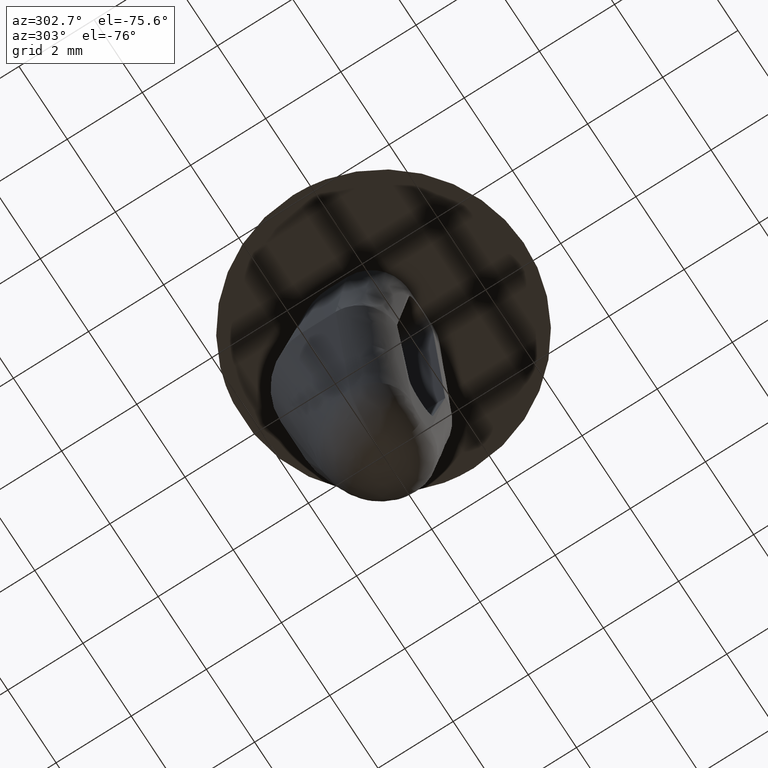
[diagram: clean part render]
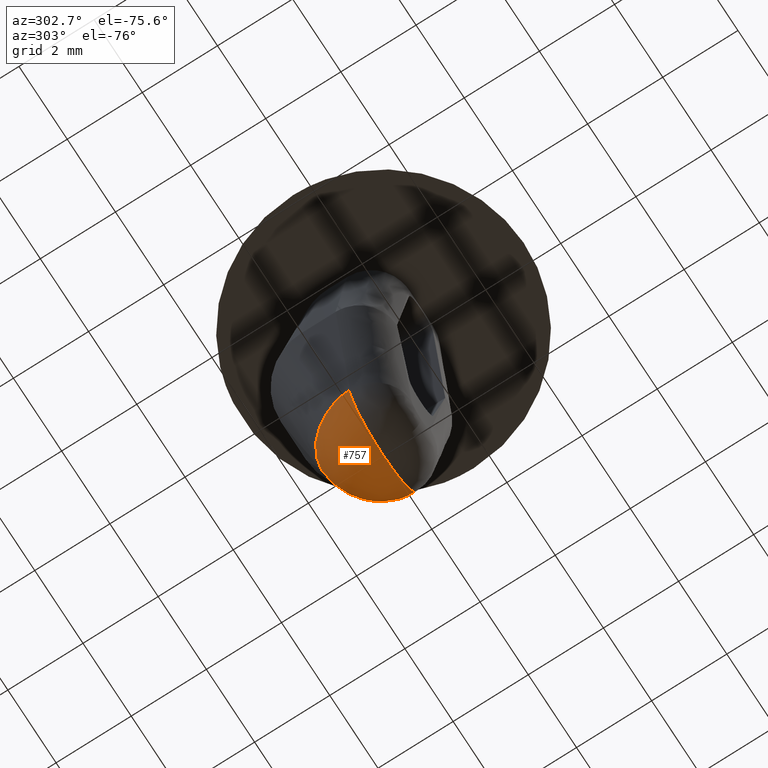
[diagram: same view with one face highlighted and labeled with its STEP entity id]
A machine part, auxiliary view. The second image highlights one B-rep face of the part: STEP entity #757.
In plain terms, the highlighted face is a freeform B-spline surface patch.
Its self-contained STEP definition (entity closure, byte-faithful):
#547=CARTESIAN_POINT('',(-0.000000418702529,1.645494502491510,-9.042271304584160));
#548=VERTEX_POINT('',#547);
#549=CARTESIAN_POINT('',(-1.389561000000000,0.024928463886464,-9.770653000000001));
#550=VERTEX_POINT('',#549);
#551=CARTESIAN_POINT('',(-0.000000418702529,1.645494502491510,-9.042271304584160));
#552=CARTESIAN_POINT('',(-1.360520929404774,1.473893311671256,-10.007112227865576));
#553=CARTESIAN_POINT('',(-1.389561000000000,0.024928463886464,-9.770653000000001));
#561=(BOUNDED_CURVE()B_SPLINE_CURVE(2,(#551,#552,#553),.UNSPECIFIED.,.F.,.U.)CURVE()GEOMETRIC_REPRESENTATION_ITEM()QUASI_UNIFORM_CURVE()RATIONAL_B_SPLINE_CURVE((1.0,0.714613377494958,1.0))REPRESENTATION_ITEM(''));
#562=EDGE_CURVE('',#548,#550,#561,.T.);
#578=CARTESIAN_POINT('',(-1.389561053966960,0.024927836228587,-9.770652560560514));
#579=CARTESIAN_POINT('',(-1.389501200886621,0.027914290247830,-9.771139926705336));
#580=CARTESIAN_POINT('',(-1.389432868905112,0.030901384730316,-9.771621204866937));
#581=CARTESIAN_POINT('',(-1.389317637509773,0.035383652003996,-9.772334093481506));
#582=CARTESIAN_POINT('',(-1.389277110054419,0.036877805138422,-9.772570186246220));
#583=CARTESIAN_POINT('',(-1.389191806482229,0.039866791504760,-9.773039383142146));
#584=CARTESIAN_POINT('',(-1.389147036090702,0.041361412954405,-9.773272454841065));
#585=CARTESIAN_POINT('',(-1.388912583307404,0.048835483380725,-9.774430228004313));
#586=CARTESIAN_POINT('',(-1.388691086311182,0.054818084913192,-9.775332214710849));
#587=CARTESIAN_POINT('',(-1.388180295024732,0.066788022175820,-9.777087429413351));
#588=CARTESIAN_POINT('',(-1.387890978530147,0.072775881256397,-9.777940734244716));
#589=CARTESIAN_POINT('',(-1.387244594933932,0.084755490690341,-9.779598469435095));
#590=CARTESIAN_POINT('',(-1.386887501656769,0.090747728775116,-9.780402967389211));
#591=CARTESIAN_POINT('',(-1.386105620145747,0.102735255705391,-9.781962980050393));
#592=CARTESIAN_POINT('',(-1.385680802717095,0.108730994375913,-9.782718553401805));
#593=CARTESIAN_POINT('',(-1.384763537570047,0.120724682281884,-9.784180614733824));
#594=CARTESIAN_POINT('',(-1.384271058509065,0.126723043195124,-9.784887153003206));
#595=CARTESIAN_POINT('',(-1.382692286573189,0.144720179646091,-9.786932996254876));
#596=CARTESIAN_POINT('',(-1.381504556036458,0.156722134580490,-9.788198654600404));
#597=CARTESIAN_POINT('',(-1.378859492705276,0.180725374448488,-9.790532610281053));
#598=CARTESIAN_POINT('',(-1.377402092628074,0.192727278254210,-9.791600968461149));
#599=CARTESIAN_POINT('',(-1.374218544527398,0.216723499851805,-9.793539718780629));
#600=CARTESIAN_POINT('',(-1.372492329831645,0.228718325796422,-9.794410152520918));
#601=CARTESIAN_POINT('',(-1.366912078603092,0.264681023261377,-9.796723762966559));
#602=CARTESIAN_POINT('',(-1.362656163712308,0.288628373151795,-9.797869274347171));
#603=CARTESIAN_POINT('',(-1.353083059088279,0.336409971671148,-9.799363749539529));
#604=CARTESIAN_POINT('',(-1.347765753883744,0.360244811940952,-9.799712734096113));
#605=CARTESIAN_POINT('',(-1.336082319734718,0.407745711190547,-9.799613361942347));
#606=CARTESIAN_POINT('',(-1.329716087982082,0.431412196177012,-9.799165005782829));
#607=CARTESIAN_POINT('',(-1.315949711722569,0.478521032128955,-9.797472016370881));
#608=CARTESIAN_POINT('',(-1.308549475659303,0.501963700921858,-9.796227372660447));
#609=CARTESIAN_POINT('',(-1.292732427307874,0.548570035843389,-9.792944732947044));
#610=CARTESIAN_POINT('',(-1.284315532970530,0.571733946446825,-9.790906720398775));
#611=CARTESIAN_POINT('',(-1.257569567582784,0.640725813802868,-9.783609826229084));
#612=CARTESIAN_POINT('',(-1.237743848683253,0.686054037050395,-9.777167112374039));
#613=CARTESIAN_POINT('',(-1.194288204988043,0.774952628158699,-9.761185872761155));
#614=CARTESIAN_POINT('',(-1.170658215238241,0.818523135429677,-9.751647324273121));
#615=CARTESIAN_POINT('',(-1.094394039080718,0.945985572065960,-9.718522026889792));
#616=CARTESIAN_POINT('',(-1.036369940434107,1.026616655649257,-9.690412044283315));
#617=CARTESIAN_POINT('',(-0.908123958422693,1.176182754640971,-9.623187939715876));
#618=CARTESIAN_POINT('',(-0.837904895950902,1.245114490071360,-9.584075298161441));
#619=CARTESIAN_POINT('',(-0.687894308418643,1.368703670469905,-9.496308020178576));
#620=CARTESIAN_POINT('',(-0.608106139844190,1.423358354174002,-9.447655348281131));
#621=CARTESIAN_POINT('',(-0.358857899964416,1.562844242044005,-9.290112802378836));
#622=CARTESIAN_POINT('',(-0.179493173439134,1.622855192674833,-9.169562249957846));
#623=CARTESIAN_POINT('',(-0.000000418702384,1.645494502491401,-9.042271304585135));
#624=CARTESIAN_POINT('',(-0.000001603760937,0.024934752465664,-21.085481325899305));
#625=CARTESIAN_POINT('',(-0.000001597249771,0.213285829258886,-21.051227777039191));
#626=CARTESIAN_POINT('',(-0.000001590446066,0.395259541333306,-21.012804562379259));
#627=CARTESIAN_POINT('',(-0.000001578392427,0.666962398009448,-20.935696144366272));
#628=CARTESIAN_POINT('',(-0.000001574483833,0.754637900317102,-20.910632078423944));
#629=CARTESIAN_POINT('',(-0.000001565776649,0.931011025540784,-20.851396974762473));
#630=CARTESIAN_POINT('',(-0.000001561408412,1.017258969118652,-20.821256676967050));
#631=CARTESIAN_POINT('',(-0.000001538802677,1.441340666101279,-20.661448604290577));
#632=CARTESIAN_POINT('',(-0.000001517812230,1.762650910277972,-20.500175265216921));
#633=CARTESIAN_POINT('',(-0.000001473956283,2.349228958973809,-20.148150042470359));
#634=CARTESIAN_POINT('',(-0.000001450082412,2.617979368277197,-19.947514913833480));
#635=CARTESIAN_POINT('',(-0.000001401953932,3.101221061811628,-19.532643493770127));
#636=CARTESIAN_POINT('',(-0.000001376881521,3.315742093990597,-19.309897094309083));
#637=CARTESIAN_POINT('',(-0.000001327433681,3.695960651200239,-18.862986095670117));
#638=CARTESIAN_POINT('',(-0.000001302481291,3.859622763641657,-18.632439906638400));
#639=CARTESIAN_POINT('',(-0.000001253966305,4.145192792528079,-18.178384977466095));
#640=CARTESIAN_POINT('',(-0.000001230043600,4.264207039798426,-17.950616808742993));
#641=CARTESIAN_POINT('',(-0.000001160938270,4.569629560960567,-17.285831083045537));
#642=CARTESIAN_POINT('',(-0.000001117908543,4.695990980489790,-16.860563352712731));
#643=CARTESIAN_POINT('',(-0.000001039865930,4.858723411717596,-16.077414567806503));
#644=CARTESIAN_POINT('',(-0.000001004724678,4.891072889606980,-15.717515036823585));
#645=CARTESIAN_POINT('',(-0.000000941585921,4.904560406764051,-15.062893154100554));
#646=CARTESIAN_POINT('',(-0.000000913612330,4.883134711166754,-14.767996868243390));
#647=CARTESIAN_POINT('',(-0.000000838405838,4.778486251073779,-13.966828442842189));
#648=CARTESIAN_POINT('',(-0.000000799969103,4.653717130133602,-13.544629497601189));
#649=CARTESIAN_POINT('',(-0.000000736987584,4.393124515391925,-12.842936294716415));
#650=CARTESIAN_POINT('',(-0.000000712535312,4.254239180477781,-12.563778855346699));
#651=CARTESIAN_POINT('',(-0.000000671757372,3.989270749863088,-12.092342909061395));
#652=CARTESIAN_POINT('',(-0.000000655515496,3.862197299232854,-11.900722942398152));
#653=CARTESIAN_POINT('',(-0.000000627944953,3.625838501579224,-11.571800228704985));
#654=CARTESIAN_POINT('',(-0.000000616662738,3.516251177640486,-11.434905012255991));
#655=CARTESIAN_POINT('',(-0.000000597179209,3.314057119067945,-11.196206456302134));
#656=CARTESIAN_POINT('',(-0.000000589001634,3.221363336588928,-11.094623230514950));
#657=CARTESIAN_POINT('',(-0.000000567466510,2.965285879336539,-10.824993137515820));
#658=CARTESIAN_POINT('',(-0.000000557021213,2.823696485694307,-10.691128016267587));
#659=CARTESIAN_POINT('',(-0.000000539558436,2.580739766636925,-10.466187215573898));
#660=CARTESIAN_POINT('',(-0.000000532623392,2.479345449020715,-10.376001318554335));
#661=CARTESIAN_POINT('',(-0.000000514435601,2.216332880751807,-10.139957283101156));
#662=CARTESIAN_POINT('',(-0.000000505686374,2.094646811100502,-10.027266643635061));
#663=CARTESIAN_POINT('',(-0.000000489810274,1.904928057615818,-9.828350128618951));
#664=CARTESIAN_POINT('',(-0.000000482855824,1.837823311367327,-9.744021589562070));
#665=CARTESIAN_POINT('',(-0.000000469431073,1.735623010530320,-9.586180083422375));
#666=CARTESIAN_POINT('',(-0.000000463005005,1.700862101350329,-9.513118686490884));
#667=CARTESIAN_POINT('',(-0.000000443879528,1.628962632804279,-9.301312297907428));
#668=CARTESIAN_POINT('',(-0.000000431363844,1.622809402067128,-9.169819699912882));
#669=CARTESIAN_POINT('',(-0.000000418702335,1.645494502491558,-9.042271304584252));
#670=CARTESIAN_POINT('',(1.389560021167872,0.024927788729194,-9.770652827635640));
#671=CARTESIAN_POINT('',(1.389500168095953,0.027914242750403,-9.771140193768902));
#672=CARTESIAN_POINT('',(1.389431836124079,0.030901337235313,-9.771621471917138));
#673=CARTESIAN_POINT('',(1.389316604744930,0.035383604512971,-9.772334360509641));
#674=CARTESIAN_POINT('',(1.389276077295317,0.036877757648734,-9.772570453266223));
#675=CARTESIAN_POINT('',(1.389190773735125,0.039866744018002,-9.773039650145700));
#676=CARTESIAN_POINT('',(1.389146003349820,0.041361365469147,-9.773272721836605));
#677=CARTESIAN_POINT('',(1.388911550599480,0.048835435903473,-9.774430494954814));
#678=CARTESIAN_POINT('',(1.388690053634408,0.054818037443579,-9.775332481618701));
#679=CARTESIAN_POINT('',(1.388179262419794,0.066787974723672,-9.777087696222854));
#680=CARTESIAN_POINT('',(1.387889945965867,0.072775833814140,-9.777941000998782));
#681=CARTESIAN_POINT('',(1.387243562460526,0.084755443270185,-9.779598736064974));
#682=CARTESIAN_POINT('',(1.386886469233566,0.090747681367091,-9.780403233950528));
#683=CARTESIAN_POINT('',(1.386104587832514,0.102735208324150,-9.781963246461132));
#684=CARTESIAN_POINT('',(1.385679770463577,0.108730947009149,-9.782718819731050));
#685=CARTESIAN_POINT('',(1.384762505445468,0.120724634946423,-9.784180880887034));
#686=CARTESIAN_POINT('',(1.384270026453726,0.126722995876548,-9.784887419061786));
#687=CARTESIAN_POINT('',(1.382691254739786,0.144720132381434,-9.786933262010386));
#688=CARTESIAN_POINT('',(1.381503524370127,0.156722087356430,-9.788198920127160));
#689=CARTESIAN_POINT('',(1.378858461410879,0.180725327314868,-9.790532875299279));
#690=CARTESIAN_POINT('',(1.377401061538724,0.192727231170504,-9.791601233198350));
#691=CARTESIAN_POINT('',(1.374217513885595,0.216723452876824,-9.793539982906639));
#692=CARTESIAN_POINT('',(1.372491299432582,0.228718278880608,-9.794410416314921));
#693=CARTESIAN_POINT('',(1.366911048988869,0.264680976536229,-9.796724025686741));
#694=CARTESIAN_POINT('',(1.362655134696109,0.288628326571960,-9.797869536252287));
#695=CARTESIAN_POINT('',(1.353082031418441,0.336409925418756,-9.799364009602648));
#696=CARTESIAN_POINT('',(1.347764726961443,0.360244765870209,-9.799712993138348));
#697=CARTESIAN_POINT('',(1.336081294455478,0.407745665519348,-9.799613618737334));
#698=CARTESIAN_POINT('',(1.329715063597861,0.431412150723372,-9.799165261355311));
#699=CARTESIAN_POINT('',(1.315948689274205,0.478520987145736,-9.797472269296927));
#700=CARTESIAN_POINT('',(1.308548454251431,0.501963656191601,-9.796227624164731));
#701=CARTESIAN_POINT('',(1.292731408124156,0.548569991654022,-9.792944981410427));
#702=CARTESIAN_POINT('',(1.284314514970264,0.571733902544796,-9.790906967245711));
#703=CARTESIAN_POINT('',(1.257568553343452,0.640725770815684,-9.783610067933635));
#704=CARTESIAN_POINT('',(1.237742837232138,0.686053994740816,-9.777167350266392));
#705=CARTESIAN_POINT('',(1.194287199646579,0.774952587334031,-9.761186102306203));
#706=CARTESIAN_POINT('',(1.170657213220150,0.818523095412552,-9.751647549274459));
#707=CARTESIAN_POINT('',(1.094393047785843,0.945985534657039,-9.718522237231923));
#708=CARTESIAN_POINT('',(1.036368957297534,1.026616620222382,-9.690412243480010));
#709=CARTESIAN_POINT('',(0.908122993322121,1.176182723598922,-9.623188114250839));
#710=CARTESIAN_POINT('',(0.837903940721039,1.245114461428656,-9.584075459213432));
#711=CARTESIAN_POINT('',(0.687893374286510,1.368703646955738,-9.496308152385193));
#712=CARTESIAN_POINT('',(0.608105216930168,1.423358333388130,-9.447655465153074));
#713=CARTESIAN_POINT('',(0.358857012097694,1.562844229775188,-9.290112871359034));
#714=CARTESIAN_POINT('',(0.179492310819854,1.622855186546697,-9.169562284414338));
#715=CARTESIAN_POINT('',(-0.000000418702286,1.645494502491715,-9.042271304583370));
#723=(BOUNDED_SURFACE()B_SPLINE_SURFACE(3,2,((#578,#624,#670),(#579,#625,#671),(#580,#626,#672),(#581,#627,#673),(#582,#628,#674),(#583,#629,#675),(#584,#630,#676),(#585,#631,#677),(#586,#632,#678),(#587,#633,#679),(#588,#634,#680),(#589,#635,#681),(#590,#636,#682),(#591,#637,#683),(#592,#638,#684),(#593,#639,#685),(#594,#640,#686),(#595,#641,#687),(#596,#642,#688),(#597,#643,#689),(#598,#644,#690),(#599,#645,#691),(#600,#646,#692),(#601,#647,#693),(#602,#648,#694),(#603,#649,#695),(#604,#650,#696),(#605,#651,#697),(#606,#652,#698),(#607,#653,#699),(#608,#654,#700),(#609,#655,#701),(#610,#656,#702),(#611,#657,#703),(#612,#658,#704),(#613,#659,#705),(#614,#660,#706),(#615,#661,#707),(#616,#662,#708),(#617,#663,#709),(#618,#664,#710),(#619,#665,#711),(#620,#666,#712),(#621,#667,#713),(#622,#668,#714),(#623,#669,#715)),.UNSPECIFIED.,.F.,.F.,.U.)B_SPLINE_SURFACE_WITH_KNOTS((4,2,2,2,2,2,2,2,2,2,2,2,2,2,2,2,2,2,2,2,2,2,4),(3,3),(6.304531312011844,6.310583852332011,6.313610122492094,6.316636392652177,6.328741473292510,6.340846553932843,6.352951634573175,6.365056715213509,6.377161795853842,6.401371957134508,6.425582118415174,6.449792279695840,6.498212602257173,6.546632924818505,6.595053247379838,6.643473569941170,6.691893892502502,6.788734537625167,6.885575182747831,7.079256472993160,7.272937763238489,7.466619053483818,7.853981633974477),(0.0,1.0),.UNSPECIFIED.)GEOMETRIC_REPRESENTATION_ITEM()RATIONAL_B_SPLINE_SURFACE(((1.0,0.121893045362828,1.0),(1.0,0.122243486911790,1.0),(1.0,0.122634010924313,1.0),(1.0,0.123302315215173,1.0),(1.0,0.123531962978089,1.0),(1.0,0.124023657223771,1.0),(1.0,0.124278424964583,1.0),(1.0,0.125608888085401,1.0),(1.0,0.126861839537044,1.0),(1.0,0.129676205676321,1.0),(1.0,0.131256936024069,1.0),(1.0,0.134691769760469,1.0),(1.0,0.136565032818732,1.0),(1.0,0.140551011479530,1.0),(1.0,0.142681250266685,1.0),(1.0,0.147149696777447,1.0),(1.0,0.149503035840105,1.0),(1.0,0.156832345374208,1.0),(1.0,0.162113678584451,1.0),(1.0,0.173217419548905,1.0),(1.0,0.179056410707400,1.0),(1.0,0.191126626121136,1.0),(1.0,0.197368242808187,1.0),(1.0,0.216517628884277,1.0),(1.0,0.229858733783732,1.0),(1.0,0.257096644449157,1.0),(1.0,0.271004533810834,1.0),(1.0,0.299067528197917,1.0),(1.0,0.313227594280239,1.0),(1.0,0.341604480901823,1.0),(1.0,0.355823658632692,1.0),(1.0,0.384190740513046,1.0),(1.0,0.398339854700918,1.0),(1.0,0.440540756418784,1.0),(1.0,0.468341599988622,1.0),(1.0,0.522747523358821,1.0),(1.0,0.549356730711823,1.0),(1.0,0.626830501975710,1.0),(1.0,0.675323195054583,1.0),(1.0,0.763736033074240,1.0),(1.0,0.803664480528171,1.0),(1.0,0.873301266802433,1.0),(1.0,0.903010803364285,1.0),(1.0,0.975032942462325,1.0),(1.0,1.000119515856331,1.0),(1.0,1.0,1.0)))REPRESENTATION_ITEM('')SURFACE());
#724=CARTESIAN_POINT('',(1.389560529295354,0.024928488902565,-9.770648330865120));
#725=VERTEX_POINT('',#724);
#726=CARTESIAN_POINT('',(-0.000000418702529,1.645494502491510,-9.042271304584160));
#727=CARTESIAN_POINT('',(1.360520914315762,1.473893205990461,-10.007110402412607));
#728=CARTESIAN_POINT('',(1.389560529295354,0.024928488902565,-9.770648330865120));
#736=(BOUNDED_CURVE()B_SPLINE_CURVE(2,(#726,#727,#728),.UNSPECIFIED.,.F.,.U.)CURVE()GEOMETRIC_REPRESENTATION_ITEM()QUASI_UNIFORM_CURVE()RATIONAL_B_SPLINE_CURVE((1.0,0.714613293480517,1.0))REPRESENTATION_ITEM(''));
#737=EDGE_CURVE('',#548,#725,#736,.T.);
#738=ORIENTED_EDGE('',*,*,#737,.T.);
#739=CARTESIAN_POINT('',(-1.389561000000000,0.024928463886464,-9.770653000000001));
#740=CARTESIAN_POINT('',(-1.238582142419833,0.024928555352551,-11.000000268518331));
#741=CARTESIAN_POINT('',(0.000001884262889,0.024928566501593,-10.999998187603261));
#742=CARTESIAN_POINT('',(1.238585910945613,0.024928577650635,-10.999996106688185));
#743=CARTESIAN_POINT('',(1.389560529295354,0.024928488902565,-9.770648330865120));
#751=(BOUNDED_CURVE()B_SPLINE_CURVE(2,(#739,#740,#741,#742,#743),.UNSPECIFIED.,.F.,.U.)B_SPLINE_CURVE_WITH_KNOTS((3,2,3),(0.0,0.500000000000000,1.0),.UNSPECIFIED.)CURVE()GEOMETRIC_REPRESENTATION_ITEM()RATIONAL_B_SPLINE_CURVE((1.0,0.748964160364041,1.0,0.748964160364041,1.0))REPRESENTATION_ITEM(''));
#752=EDGE_CURVE('',#550,#725,#751,.T.);
#753=ORIENTED_EDGE('',*,*,#752,.F.);
#754=ORIENTED_EDGE('',*,*,#562,.F.);
#755=EDGE_LOOP('',(#738,#753,#754));
#756=FACE_OUTER_BOUND('',#755,.T.);
#757=ADVANCED_FACE('',(#756),#723,.T.);